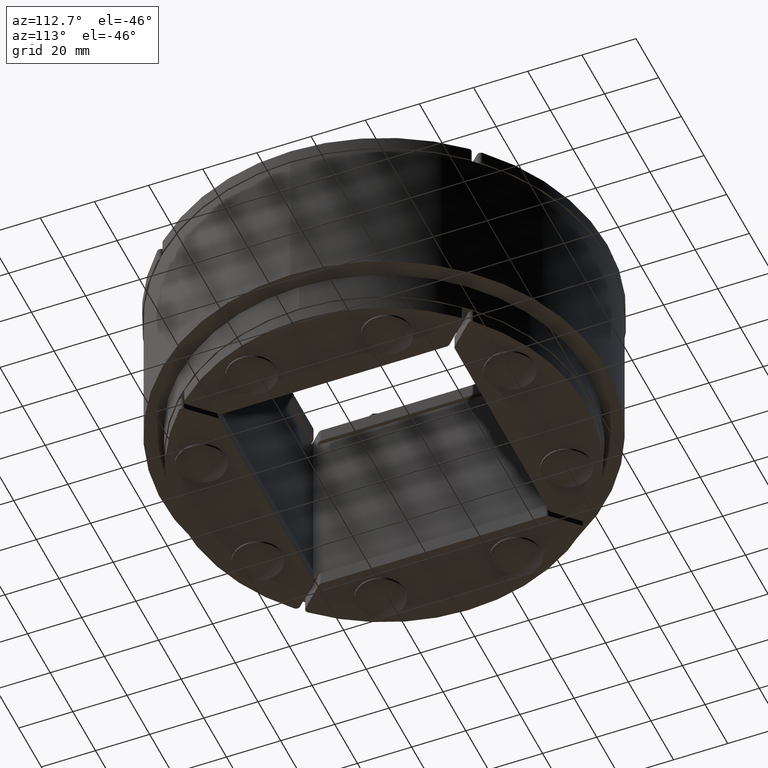
[diagram: clean part render]
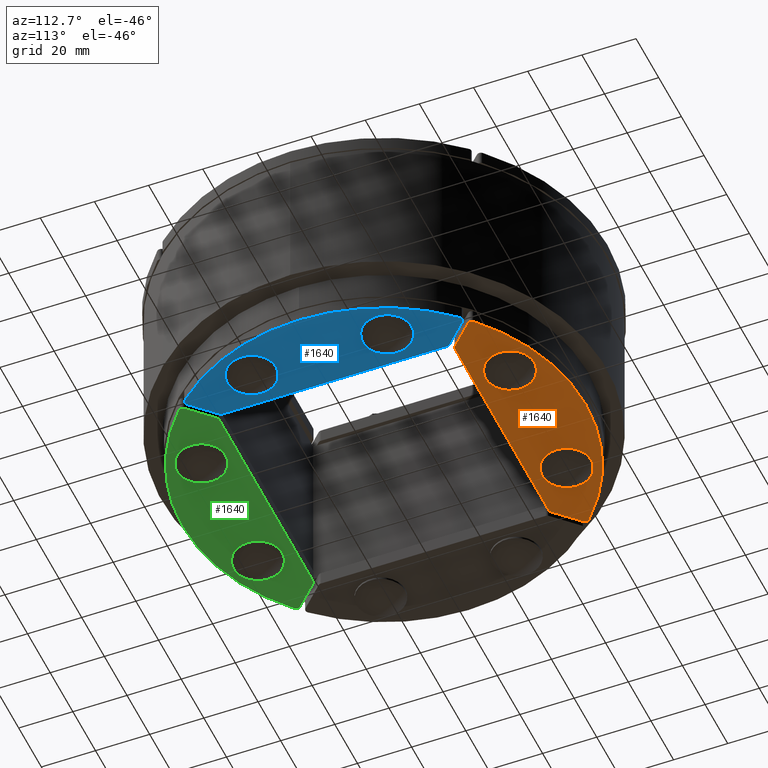
[diagram: same view with three faces highlighted in distinct colors, each labeled with its STEP entity id]
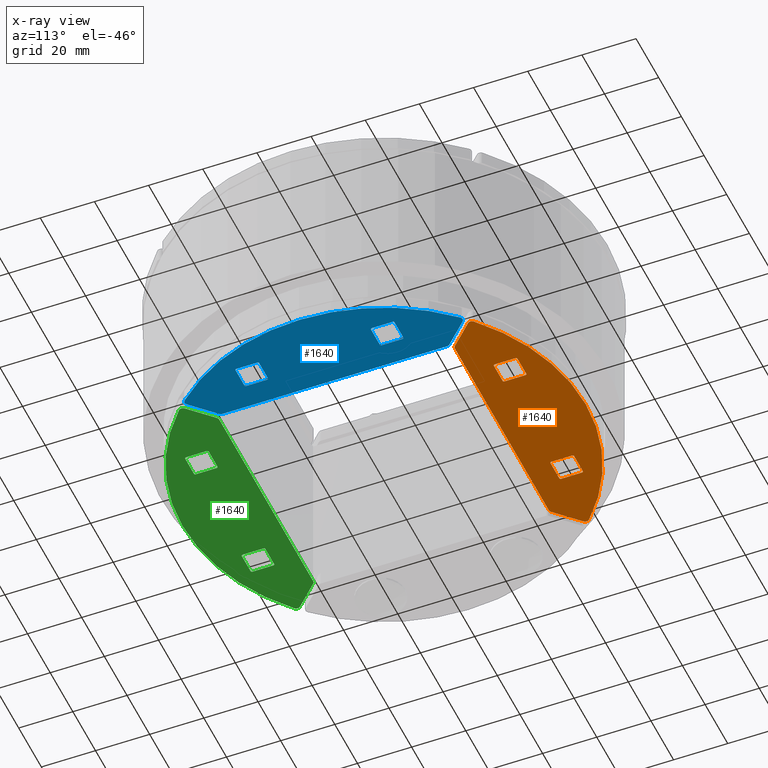
[diagram: x-ray of the same camera — body ghosted, the three highlighted faces saturated]
A machine part, auxiliary view with three faces highlighted in distinct colors.
The next image is the same camera in x-ray (body ghosted, the three faces saturated) — at least one of them is partly hidden behind the body in this view.
Their STEP definitions:

[orange] entity #1640 — the highlighted planar face has unit normal (0, 0, 1).
#1372=CARTESIAN_POINT('',(50.88140938278157,52.295622945154662,-5.0));
#1373=VERTEX_POINT('',#1372);
#1374=CARTESIAN_POINT('',(50.844463235885357,54.452645098789304,-5.0));
#1375=VERTEX_POINT('',#1374);
#1376=CARTESIAN_POINT('',(49.820749211001754,53.356283116934478,-5.0));
#1377=DIRECTION('',(0.0,0.0,1.0));
#1378=DIRECTION('',(0.999853342745097,0.017125799293949,0.0));
#1379=AXIS2_PLACEMENT_3D('',#1376,#1377,#1378);
#1380=CIRCLE('',#1379,1.5);
#1381=EDGE_CURVE('',#1373,#1375,#1380,.T.);
#1415=CARTESIAN_POINT('',(-50.844463235885364,54.452645098789304,-5.0));
#1416=VERTEX_POINT('',#1415);
#1417=CARTESIAN_POINT('',(0.0,0.0,-5.0));
#1418=DIRECTION('',(0.0,0.0,-1.0));
#1419=DIRECTION('',(-1.0,0.0,0.0));
#1420=AXIS2_PLACEMENT_3D('',#1417,#1418,#1419);
#1421=CIRCLE('',#1420,74.5);
#1422=EDGE_CURVE('',#1416,#1375,#1421,.T.);
#1442=CARTESIAN_POINT('',(-3.939464E-015,-1.589581E-015,-5.0));
#1443=DIRECTION('',(0.0,0.0,1.0));
#1444=DIRECTION('',(1.0,0.0,0.0));
#1445=AXIS2_PLACEMENT_3D('',#1442,#1443,#1444);
#1446=PLANE('',#1445);
#1447=ORIENTED_EDGE('',*,*,#1381,.F.);
#1448=CARTESIAN_POINT('',(42.525126265847099,43.939339828220191,-5.0));
#1449=VERTEX_POINT('',#1448);
#1450=CARTESIAN_POINT('',(50.881409382781584,52.295622945154676,-5.0));
#1451=DIRECTION('',(-0.707106781186548,-0.707106781186548,0.0));
#1452=VECTOR('',#1451,11.817568914998057);
#1453=LINE('',#1450,#1452);
#1454=EDGE_CURVE('',#1373,#1449,#1453,.T.);
#1455=ORIENTED_EDGE('',*,*,#1454,.T.);
#1456=CARTESIAN_POINT('',(41.464466094067291,43.500000000000007,-5.0));
#1457=VERTEX_POINT('',#1456);
#1458=CARTESIAN_POINT('',(41.464466094067291,45.000000000000007,-5.0));
#1459=DIRECTION('',(0.0,0.0,1.0));
#1460=DIRECTION('',(0.382683432365086,-0.923879532511288,0.0));
#1461=AXIS2_PLACEMENT_3D('',#1458,#1459,#1460);
#1462=CIRCLE('',#1461,1.5);
#1463=EDGE_CURVE('',#1457,#1449,#1462,.T.);
#1464=ORIENTED_EDGE('',*,*,#1463,.F.);
#1465=CARTESIAN_POINT('',(-41.464466094067269,43.500000000000007,-5.0));
#1466=VERTEX_POINT('',#1465);
#1467=CARTESIAN_POINT('',(41.464466094067291,43.500000000000007,-5.0));
#1468=DIRECTION('',(-1.0,0.0,0.0));
#1469=VECTOR('',#1468,82.928932188134553);
#1470=LINE('',#1467,#1469);
#1471=EDGE_CURVE('',#1457,#1466,#1470,.T.);
#1472=ORIENTED_EDGE('',*,*,#1471,.T.);
#1473=CARTESIAN_POINT('',(-42.525126265847092,43.939339828220184,-5.0));
#1474=VERTEX_POINT('',#1473);
#1475=CARTESIAN_POINT('',(-41.464466094067269,45.000000000000007,-5.0));
#1476=DIRECTION('',(0.0,0.0,1.0));
#1477=DIRECTION('',(-0.382683432365092,-0.923879532511286,0.0));
#1478=AXIS2_PLACEMENT_3D('',#1475,#1476,#1477);
#1479=CIRCLE('',#1478,1.5);
#1480=EDGE_CURVE('',#1474,#1466,#1479,.T.);
#1481=ORIENTED_EDGE('',*,*,#1480,.F.);
#1482=CARTESIAN_POINT('',(-50.88140938278157,52.295622945154662,-5.0));
#1483=VERTEX_POINT('',#1482);
#1484=CARTESIAN_POINT('',(-42.525126265847092,43.939339828220184,-5.0));
#1485=DIRECTION('',(-0.707106781186547,0.707106781186547,0.0));
#1486=VECTOR('',#1485,11.817568914998079);
#1487=LINE('',#1484,#1486);
#1488=EDGE_CURVE('',#1474,#1483,#1487,.T.);
#1489=ORIENTED_EDGE('',*,*,#1488,.T.);
#1490=CARTESIAN_POINT('',(-49.820749211001747,53.356283116934478,-5.0));
#1491=DIRECTION('',(0.0,0.0,1.0));
#1492=DIRECTION('',(-0.999853342745097,0.017125799293949,0.0));
#1493=AXIS2_PLACEMENT_3D('',#1490,#1491,#1492);
#1494=CIRCLE('',#1493,1.5);
#1495=EDGE_CURVE('',#1416,#1483,#1494,.T.);
#1496=ORIENTED_EDGE('',*,*,#1495,.F.);
#1497=ORIENTED_EDGE('',*,*,#1422,.T.);
#1498=EDGE_LOOP('',(#1447,#1455,#1464,#1472,#1481,#1489,#1496,#1497));
#1499=FACE_OUTER_BOUND('',#1498,.T.);
#1500=CARTESIAN_POINT('',(21.150000000000013,61.349999999999994,-5.0));
#1501=VERTEX_POINT('',#1500);
#1502=CARTESIAN_POINT('',(20.650000000000016,60.849999999999994,-5.0));
#1503=VERTEX_POINT('',#1502);
#1504=CARTESIAN_POINT('',(21.150000000000013,60.849999999999994,-5.0));
#1505=DIRECTION('',(0.0,0.0,1.0));
#1506=DIRECTION('',(-1.0,0.0,0.0));
#1507=AXIS2_PLACEMENT_3D('',#1504,#1505,#1506);
#1508=CIRCLE('',#1507,0.5);
#1509=EDGE_CURVE('',#1501,#1503,#1508,.T.);
#1510=ORIENTED_EDGE('',*,*,#1509,.T.);
#1511=CARTESIAN_POINT('',(20.650000000000016,53.149999999999984,-5.0));
#1512=VERTEX_POINT('',#1511);
#1513=CARTESIAN_POINT('',(20.650000000000016,60.849999999999994,-5.0));
#1514=DIRECTION('',(0.0,-1.0,0.0));
#1515=VECTOR('',#1514,7.700000000000003);
#1516=LINE('',#1513,#1515);
#1517=EDGE_CURVE('',#1503,#1512,#1516,.T.);
#1518=ORIENTED_EDGE('',*,*,#1517,.T.);
#1519=CARTESIAN_POINT('',(21.150000000000016,52.649999999999991,-5.0));
#1520=VERTEX_POINT('',#1519);
#1521=CARTESIAN_POINT('',(21.150000000000016,53.149999999999984,-5.0));
#1522=DIRECTION('',(0.0,0.0,1.0));
#1523=DIRECTION('',(0.0,-1.0,0.0));
#1524=AXIS2_PLACEMENT_3D('',#1521,#1522,#1523);
#1525=CIRCLE('',#1524,0.5);
#1526=EDGE_CURVE('',#1512,#1520,#1525,.T.);
#1527=ORIENTED_EDGE('',*,*,#1526,.T.);
#1528=CARTESIAN_POINT('',(28.850000000000019,52.649999999999991,-5.0));
#1529=VERTEX_POINT('',#1528);
#1530=CARTESIAN_POINT('',(21.150000000000016,52.649999999999991,-5.0));
#1531=DIRECTION('',(1.0,0.0,0.0));
#1532=VECTOR('',#1531,7.700000000000003);
#1533=LINE('',#1530,#1532);
#1534=EDGE_CURVE('',#1520,#1529,#1533,.T.);
#1535=ORIENTED_EDGE('',*,*,#1534,.T.);
#1536=CARTESIAN_POINT('',(29.350000000000023,53.149999999999984,-5.0));
#1537=VERTEX_POINT('',#1536);
#1538=CARTESIAN_POINT('',(28.850000000000019,53.149999999999984,-5.0));
#1539=DIRECTION('',(0.0,0.0,1.0));
#1540=DIRECTION('',(1.0,0.0,0.0));
#1541=AXIS2_PLACEMENT_3D('',#1538,#1539,#1540);
#1542=CIRCLE('',#1541,0.5);
#1543=EDGE_CURVE('',#1529,#1537,#1542,.T.);
#1544=ORIENTED_EDGE('',*,*,#1543,.T.);
#1545=CARTESIAN_POINT('',(29.350000000000023,60.849999999999994,-5.0));
#1546=VERTEX_POINT('',#1545);
#1547=CARTESIAN_POINT('',(29.350000000000023,53.149999999999984,-5.0));
#1548=DIRECTION('',(0.0,1.0,0.0));
#1549=VECTOR('',#1548,7.70000000000001);
#1550=LINE('',#1547,#1549);
#1551=EDGE_CURVE('',#1537,#1546,#1550,.T.);
#1552=ORIENTED_EDGE('',*,*,#1551,.T.);
#1553=CARTESIAN_POINT('',(28.850000000000016,61.349999999999994,-5.0));
#1554=VERTEX_POINT('',#1553);
#1555=CARTESIAN_POINT('',(28.850000000000016,60.849999999999994,-5.0));
#1556=DIRECTION('',(0.0,0.0,1.0));
#1557=DIRECTION('',(0.0,1.0,0.0));
#1558=AXIS2_PLACEMENT_3D('',#1555,#1556,#1557);
#1559=CIRCLE('',#1558,0.5);
#1560=EDGE_CURVE('',#1546,#1554,#1559,.T.);
#1561=ORIENTED_EDGE('',*,*,#1560,.T.);
#1562=CARTESIAN_POINT('',(28.850000000000016,61.349999999999994,-5.0));
#1563=DIRECTION('',(-1.0,0.0,0.0));
#1564=VECTOR('',#1563,7.700000000000003);
#1565=LINE('',#1562,#1564);
#1566=EDGE_CURVE('',#1554,#1501,#1565,.T.);
#1567=ORIENTED_EDGE('',*,*,#1566,.T.);
#1568=EDGE_LOOP('',(#1510,#1518,#1527,#1535,#1544,#1552,#1561,#1567));
#1569=FACE_BOUND('',#1568,.T.);
#1570=CARTESIAN_POINT('',(-29.350000000000023,53.149999999999984,-5.0));
#1571=VERTEX_POINT('',#1570);
#1572=CARTESIAN_POINT('',(-28.850000000000019,52.649999999999991,-5.0));
#1573=VERTEX_POINT('',#1572);
#1574=CARTESIAN_POINT('',(-28.850000000000019,53.149999999999984,-5.0));
#1575=DIRECTION('',(0.0,0.0,1.0));
#1576=DIRECTION('',(-1.0,0.0,0.0));
#1577=AXIS2_PLACEMENT_3D('',#1574,#1575,#1576);
#1578=CIRCLE('',#1577,0.5);
#1579=EDGE_CURVE('',#1571,#1573,#1578,.T.);
#1580=ORIENTED_EDGE('',*,*,#1579,.T.);
#1581=CARTESIAN_POINT('',(-21.150000000000016,52.649999999999991,-5.0));
#1582=VERTEX_POINT('',#1581);
#1583=CARTESIAN_POINT('',(-28.850000000000019,52.649999999999991,-5.0));
#1584=DIRECTION('',(1.0,0.0,0.0));
#1585=VECTOR('',#1584,7.700000000000003);
#1586=LINE('',#1583,#1585);
#1587=EDGE_CURVE('',#1573,#1582,#1586,.T.);
#1588=ORIENTED_EDGE('',*,*,#1587,.T.);
#1589=CARTESIAN_POINT('',(-20.650000000000016,53.149999999999984,-5.0));
#1590=VERTEX_POINT('',#1589);
#1591=CARTESIAN_POINT('',(-21.150000000000016,53.149999999999984,-5.0));
#1592=DIRECTION('',(0.0,0.0,1.0));
#1593=DIRECTION('',(0.0,-1.0,0.0));
#1594=AXIS2_PLACEMENT_3D('',#1591,#1592,#1593);
#1595=CIRCLE('',#1594,0.5);
#1596=EDGE_CURVE('',#1582,#1590,#1595,.T.);
#1597=ORIENTED_EDGE('',*,*,#1596,.T.);
#1598=CARTESIAN_POINT('',(-20.650000000000016,60.849999999999994,-5.0));
#1599=VERTEX_POINT('',#1598);
#1600=CARTESIAN_POINT('',(-20.650000000000016,53.149999999999991,-5.0));
#1601=DIRECTION('',(0.0,1.0,0.0));
#1602=VECTOR('',#1601,7.700000000000003);
#1603=LINE('',#1600,#1602);
#1604=EDGE_CURVE('',#1590,#1599,#1603,.T.);
#1605=ORIENTED_EDGE('',*,*,#1604,.T.);
#1606=CARTESIAN_POINT('',(-21.150000000000013,61.349999999999994,-5.0));
#1607=VERTEX_POINT('',#1606);
#1608=CARTESIAN_POINT('',(-21.150000000000013,60.849999999999994,-5.0));
#1609=DIRECTION('',(0.0,0.0,1.0));
#1610=DIRECTION('',(1.0,0.0,0.0));
#1611=AXIS2_PLACEMENT_3D('',#1608,#1609,#1610);
#1612=CIRCLE('',#1611,0.5);
#1613=EDGE_CURVE('',#1599,#1607,#1612,.T.);
#1614=ORIENTED_EDGE('',*,*,#1613,.T.);
#1615=CARTESIAN_POINT('',(-28.850000000000016,61.349999999999994,-5.0));
#1616=VERTEX_POINT('',#1615);
#1617=CARTESIAN_POINT('',(-21.150000000000013,61.349999999999994,-5.0));
#1618=DIRECTION('',(-1.0,0.0,0.0));
#1619=VECTOR('',#1618,7.700000000000003);
#1620=LINE('',#1617,#1619);
#1621=EDGE_CURVE('',#1607,#1616,#1620,.T.);
#1622=ORIENTED_EDGE('',*,*,#1621,.T.);
#1623=CARTESIAN_POINT('',(-29.350000000000023,60.849999999999994,-5.0));
#1624=VERTEX_POINT('',#1623);
#1625=CARTESIAN_POINT('',(-28.850000000000016,60.849999999999994,-5.0));
#1626=DIRECTION('',(0.0,0.0,1.0));
#1627=DIRECTION('',(0.0,1.0,0.0));
#1628=AXIS2_PLACEMENT_3D('',#1625,#1626,#1627);
#1629=CIRCLE('',#1628,0.5);
#1630=EDGE_CURVE('',#1616,#1624,#1629,.T.);
#1631=ORIENTED_EDGE('',*,*,#1630,.T.);
#1632=CARTESIAN_POINT('',(-29.350000000000023,60.849999999999994,-5.0));
#1633=DIRECTION('',(0.0,-1.0,0.0));
#1634=VECTOR('',#1633,7.70000000000001);
#1635=LINE('',#1632,#1634);
#1636=EDGE_CURVE('',#1624,#1571,#1635,.T.);
#1637=ORIENTED_EDGE('',*,*,#1636,.T.);
#1638=EDGE_LOOP('',(#1580,#1588,#1597,#1605,#1614,#1622,#1631,#1637));
#1639=FACE_BOUND('',#1638,.T.);
#1640=ADVANCED_FACE('',(#1499,#1569,#1639),#1446,.F.);

[blue] entity #1640 — the highlighted planar face has unit normal (0, 0, 1).
#1372=CARTESIAN_POINT('',(50.88140938278157,52.295622945154662,-5.0));
#1373=VERTEX_POINT('',#1372);
#1374=CARTESIAN_POINT('',(50.844463235885357,54.452645098789304,-5.0));
#1375=VERTEX_POINT('',#1374);
#1376=CARTESIAN_POINT('',(49.820749211001754,53.356283116934478,-5.0));
#1377=DIRECTION('',(0.0,0.0,1.0));
#1378=DIRECTION('',(0.999853342745097,0.017125799293949,0.0));
#1379=AXIS2_PLACEMENT_3D('',#1376,#1377,#1378);
#1380=CIRCLE('',#1379,1.5);
#1381=EDGE_CURVE('',#1373,#1375,#1380,.T.);
#1415=CARTESIAN_POINT('',(-50.844463235885364,54.452645098789304,-5.0));
#1416=VERTEX_POINT('',#1415);
#1417=CARTESIAN_POINT('',(0.0,0.0,-5.0));
#1418=DIRECTION('',(0.0,0.0,-1.0));
#1419=DIRECTION('',(-1.0,0.0,0.0));
#1420=AXIS2_PLACEMENT_3D('',#1417,#1418,#1419);
#1421=CIRCLE('',#1420,74.5);
#1422=EDGE_CURVE('',#1416,#1375,#1421,.T.);
#1442=CARTESIAN_POINT('',(-3.939464E-015,-1.589581E-015,-5.0));
#1443=DIRECTION('',(0.0,0.0,1.0));
#1444=DIRECTION('',(1.0,0.0,0.0));
#1445=AXIS2_PLACEMENT_3D('',#1442,#1443,#1444);
#1446=PLANE('',#1445);
#1447=ORIENTED_EDGE('',*,*,#1381,.F.);
#1448=CARTESIAN_POINT('',(42.525126265847099,43.939339828220191,-5.0));
#1449=VERTEX_POINT('',#1448);
#1450=CARTESIAN_POINT('',(50.881409382781584,52.295622945154676,-5.0));
#1451=DIRECTION('',(-0.707106781186548,-0.707106781186548,0.0));
#1452=VECTOR('',#1451,11.817568914998057);
#1453=LINE('',#1450,#1452);
#1454=EDGE_CURVE('',#1373,#1449,#1453,.T.);
#1455=ORIENTED_EDGE('',*,*,#1454,.T.);
#1456=CARTESIAN_POINT('',(41.464466094067291,43.500000000000007,-5.0));
#1457=VERTEX_POINT('',#1456);
#1458=CARTESIAN_POINT('',(41.464466094067291,45.000000000000007,-5.0));
#1459=DIRECTION('',(0.0,0.0,1.0));
#1460=DIRECTION('',(0.382683432365086,-0.923879532511288,0.0));
#1461=AXIS2_PLACEMENT_3D('',#1458,#1459,#1460);
#1462=CIRCLE('',#1461,1.5);
#1463=EDGE_CURVE('',#1457,#1449,#1462,.T.);
#1464=ORIENTED_EDGE('',*,*,#1463,.F.);
#1465=CARTESIAN_POINT('',(-41.464466094067269,43.500000000000007,-5.0));
#1466=VERTEX_POINT('',#1465);
#1467=CARTESIAN_POINT('',(41.464466094067291,43.500000000000007,-5.0));
#1468=DIRECTION('',(-1.0,0.0,0.0));
#1469=VECTOR('',#1468,82.928932188134553);
#1470=LINE('',#1467,#1469);
#1471=EDGE_CURVE('',#1457,#1466,#1470,.T.);
#1472=ORIENTED_EDGE('',*,*,#1471,.T.);
#1473=CARTESIAN_POINT('',(-42.525126265847092,43.939339828220184,-5.0));
#1474=VERTEX_POINT('',#1473);
#1475=CARTESIAN_POINT('',(-41.464466094067269,45.000000000000007,-5.0));
#1476=DIRECTION('',(0.0,0.0,1.0));
#1477=DIRECTION('',(-0.382683432365092,-0.923879532511286,0.0));
#1478=AXIS2_PLACEMENT_3D('',#1475,#1476,#1477);
#1479=CIRCLE('',#1478,1.5);
#1480=EDGE_CURVE('',#1474,#1466,#1479,.T.);
#1481=ORIENTED_EDGE('',*,*,#1480,.F.);
#1482=CARTESIAN_POINT('',(-50.88140938278157,52.295622945154662,-5.0));
#1483=VERTEX_POINT('',#1482);
#1484=CARTESIAN_POINT('',(-42.525126265847092,43.939339828220184,-5.0));
#1485=DIRECTION('',(-0.707106781186547,0.707106781186547,0.0));
#1486=VECTOR('',#1485,11.817568914998079);
#1487=LINE('',#1484,#1486);
#1488=EDGE_CURVE('',#1474,#1483,#1487,.T.);
#1489=ORIENTED_EDGE('',*,*,#1488,.T.);
#1490=CARTESIAN_POINT('',(-49.820749211001747,53.356283116934478,-5.0));
#1491=DIRECTION('',(0.0,0.0,1.0));
#1492=DIRECTION('',(-0.999853342745097,0.017125799293949,0.0));
#1493=AXIS2_PLACEMENT_3D('',#1490,#1491,#1492);
#1494=CIRCLE('',#1493,1.5);
#1495=EDGE_CURVE('',#1416,#1483,#1494,.T.);
#1496=ORIENTED_EDGE('',*,*,#1495,.F.);
#1497=ORIENTED_EDGE('',*,*,#1422,.T.);
#1498=EDGE_LOOP('',(#1447,#1455,#1464,#1472,#1481,#1489,#1496,#1497));
#1499=FACE_OUTER_BOUND('',#1498,.T.);
#1500=CARTESIAN_POINT('',(21.150000000000013,61.349999999999994,-5.0));
#1501=VERTEX_POINT('',#1500);
#1502=CARTESIAN_POINT('',(20.650000000000016,60.849999999999994,-5.0));
#1503=VERTEX_POINT('',#1502);
#1504=CARTESIAN_POINT('',(21.150000000000013,60.849999999999994,-5.0));
#1505=DIRECTION('',(0.0,0.0,1.0));
#1506=DIRECTION('',(-1.0,0.0,0.0));
#1507=AXIS2_PLACEMENT_3D('',#1504,#1505,#1506);
#1508=CIRCLE('',#1507,0.5);
#1509=EDGE_CURVE('',#1501,#1503,#1508,.T.);
#1510=ORIENTED_EDGE('',*,*,#1509,.T.);
#1511=CARTESIAN_POINT('',(20.650000000000016,53.149999999999984,-5.0));
#1512=VERTEX_POINT('',#1511);
#1513=CARTESIAN_POINT('',(20.650000000000016,60.849999999999994,-5.0));
#1514=DIRECTION('',(0.0,-1.0,0.0));
#1515=VECTOR('',#1514,7.700000000000003);
#1516=LINE('',#1513,#1515);
#1517=EDGE_CURVE('',#1503,#1512,#1516,.T.);
#1518=ORIENTED_EDGE('',*,*,#1517,.T.);
#1519=CARTESIAN_POINT('',(21.150000000000016,52.649999999999991,-5.0));
#1520=VERTEX_POINT('',#1519);
#1521=CARTESIAN_POINT('',(21.150000000000016,53.149999999999984,-5.0));
#1522=DIRECTION('',(0.0,0.0,1.0));
#1523=DIRECTION('',(0.0,-1.0,0.0));
#1524=AXIS2_PLACEMENT_3D('',#1521,#1522,#1523);
#1525=CIRCLE('',#1524,0.5);
#1526=EDGE_CURVE('',#1512,#1520,#1525,.T.);
#1527=ORIENTED_EDGE('',*,*,#1526,.T.);
#1528=CARTESIAN_POINT('',(28.850000000000019,52.649999999999991,-5.0));
#1529=VERTEX_POINT('',#1528);
#1530=CARTESIAN_POINT('',(21.150000000000016,52.649999999999991,-5.0));
#1531=DIRECTION('',(1.0,0.0,0.0));
#1532=VECTOR('',#1531,7.700000000000003);
#1533=LINE('',#1530,#1532);
#1534=EDGE_CURVE('',#1520,#1529,#1533,.T.);
#1535=ORIENTED_EDGE('',*,*,#1534,.T.);
#1536=CARTESIAN_POINT('',(29.350000000000023,53.149999999999984,-5.0));
#1537=VERTEX_POINT('',#1536);
#1538=CARTESIAN_POINT('',(28.850000000000019,53.149999999999984,-5.0));
#1539=DIRECTION('',(0.0,0.0,1.0));
#1540=DIRECTION('',(1.0,0.0,0.0));
#1541=AXIS2_PLACEMENT_3D('',#1538,#1539,#1540);
#1542=CIRCLE('',#1541,0.5);
#1543=EDGE_CURVE('',#1529,#1537,#1542,.T.);
#1544=ORIENTED_EDGE('',*,*,#1543,.T.);
#1545=CARTESIAN_POINT('',(29.350000000000023,60.849999999999994,-5.0));
#1546=VERTEX_POINT('',#1545);
#1547=CARTESIAN_POINT('',(29.350000000000023,53.149999999999984,-5.0));
#1548=DIRECTION('',(0.0,1.0,0.0));
#1549=VECTOR('',#1548,7.70000000000001);
#1550=LINE('',#1547,#1549);
#1551=EDGE_CURVE('',#1537,#1546,#1550,.T.);
#1552=ORIENTED_EDGE('',*,*,#1551,.T.);
#1553=CARTESIAN_POINT('',(28.850000000000016,61.349999999999994,-5.0));
#1554=VERTEX_POINT('',#1553);
#1555=CARTESIAN_POINT('',(28.850000000000016,60.849999999999994,-5.0));
#1556=DIRECTION('',(0.0,0.0,1.0));
#1557=DIRECTION('',(0.0,1.0,0.0));
#1558=AXIS2_PLACEMENT_3D('',#1555,#1556,#1557);
#1559=CIRCLE('',#1558,0.5);
#1560=EDGE_CURVE('',#1546,#1554,#1559,.T.);
#1561=ORIENTED_EDGE('',*,*,#1560,.T.);
#1562=CARTESIAN_POINT('',(28.850000000000016,61.349999999999994,-5.0));
#1563=DIRECTION('',(-1.0,0.0,0.0));
#1564=VECTOR('',#1563,7.700000000000003);
#1565=LINE('',#1562,#1564);
#1566=EDGE_CURVE('',#1554,#1501,#1565,.T.);
#1567=ORIENTED_EDGE('',*,*,#1566,.T.);
#1568=EDGE_LOOP('',(#1510,#1518,#1527,#1535,#1544,#1552,#1561,#1567));
#1569=FACE_BOUND('',#1568,.T.);
#1570=CARTESIAN_POINT('',(-29.350000000000023,53.149999999999984,-5.0));
#1571=VERTEX_POINT('',#1570);
#1572=CARTESIAN_POINT('',(-28.850000000000019,52.649999999999991,-5.0));
#1573=VERTEX_POINT('',#1572);
#1574=CARTESIAN_POINT('',(-28.850000000000019,53.149999999999984,-5.0));
#1575=DIRECTION('',(0.0,0.0,1.0));
#1576=DIRECTION('',(-1.0,0.0,0.0));
#1577=AXIS2_PLACEMENT_3D('',#1574,#1575,#1576);
#1578=CIRCLE('',#1577,0.5);
#1579=EDGE_CURVE('',#1571,#1573,#1578,.T.);
#1580=ORIENTED_EDGE('',*,*,#1579,.T.);
#1581=CARTESIAN_POINT('',(-21.150000000000016,52.649999999999991,-5.0));
#1582=VERTEX_POINT('',#1581);
#1583=CARTESIAN_POINT('',(-28.850000000000019,52.649999999999991,-5.0));
#1584=DIRECTION('',(1.0,0.0,0.0));
#1585=VECTOR('',#1584,7.700000000000003);
#1586=LINE('',#1583,#1585);
#1587=EDGE_CURVE('',#1573,#1582,#1586,.T.);
#1588=ORIENTED_EDGE('',*,*,#1587,.T.);
#1589=CARTESIAN_POINT('',(-20.650000000000016,53.149999999999984,-5.0));
#1590=VERTEX_POINT('',#1589);
#1591=CARTESIAN_POINT('',(-21.150000000000016,53.149999999999984,-5.0));
#1592=DIRECTION('',(0.0,0.0,1.0));
#1593=DIRECTION('',(0.0,-1.0,0.0));
#1594=AXIS2_PLACEMENT_3D('',#1591,#1592,#1593);
#1595=CIRCLE('',#1594,0.5);
#1596=EDGE_CURVE('',#1582,#1590,#1595,.T.);
#1597=ORIENTED_EDGE('',*,*,#1596,.T.);
#1598=CARTESIAN_POINT('',(-20.650000000000016,60.849999999999994,-5.0));
#1599=VERTEX_POINT('',#1598);
#1600=CARTESIAN_POINT('',(-20.650000000000016,53.149999999999991,-5.0));
#1601=DIRECTION('',(0.0,1.0,0.0));
#1602=VECTOR('',#1601,7.700000000000003);
#1603=LINE('',#1600,#1602);
#1604=EDGE_CURVE('',#1590,#1599,#1603,.T.);
#1605=ORIENTED_EDGE('',*,*,#1604,.T.);
#1606=CARTESIAN_POINT('',(-21.150000000000013,61.349999999999994,-5.0));
#1607=VERTEX_POINT('',#1606);
#1608=CARTESIAN_POINT('',(-21.150000000000013,60.849999999999994,-5.0));
#1609=DIRECTION('',(0.0,0.0,1.0));
#1610=DIRECTION('',(1.0,0.0,0.0));
#1611=AXIS2_PLACEMENT_3D('',#1608,#1609,#1610);
#1612=CIRCLE('',#1611,0.5);
#1613=EDGE_CURVE('',#1599,#1607,#1612,.T.);
#1614=ORIENTED_EDGE('',*,*,#1613,.T.);
#1615=CARTESIAN_POINT('',(-28.850000000000016,61.349999999999994,-5.0));
#1616=VERTEX_POINT('',#1615);
#1617=CARTESIAN_POINT('',(-21.150000000000013,61.349999999999994,-5.0));
#1618=DIRECTION('',(-1.0,0.0,0.0));
#1619=VECTOR('',#1618,7.700000000000003);
#1620=LINE('',#1617,#1619);
#1621=EDGE_CURVE('',#1607,#1616,#1620,.T.);
#1622=ORIENTED_EDGE('',*,*,#1621,.T.);
#1623=CARTESIAN_POINT('',(-29.350000000000023,60.849999999999994,-5.0));
#1624=VERTEX_POINT('',#1623);
#1625=CARTESIAN_POINT('',(-28.850000000000016,60.849999999999994,-5.0));
#1626=DIRECTION('',(0.0,0.0,1.0));
#1627=DIRECTION('',(0.0,1.0,0.0));
#1628=AXIS2_PLACEMENT_3D('',#1625,#1626,#1627);
#1629=CIRCLE('',#1628,0.5);
#1630=EDGE_CURVE('',#1616,#1624,#1629,.T.);
#1631=ORIENTED_EDGE('',*,*,#1630,.T.);
#1632=CARTESIAN_POINT('',(-29.350000000000023,60.849999999999994,-5.0));
#1633=DIRECTION('',(0.0,-1.0,0.0));
#1634=VECTOR('',#1633,7.70000000000001);
#1635=LINE('',#1632,#1634);
#1636=EDGE_CURVE('',#1624,#1571,#1635,.T.);
#1637=ORIENTED_EDGE('',*,*,#1636,.T.);
#1638=EDGE_LOOP('',(#1580,#1588,#1597,#1605,#1614,#1622,#1631,#1637));
#1639=FACE_BOUND('',#1638,.T.);
#1640=ADVANCED_FACE('',(#1499,#1569,#1639),#1446,.F.);

[green] entity #1640 — the highlighted planar face has unit normal (0, 0, 1).
#1372=CARTESIAN_POINT('',(50.88140938278157,52.295622945154662,-5.0));
#1373=VERTEX_POINT('',#1372);
#1374=CARTESIAN_POINT('',(50.844463235885357,54.452645098789304,-5.0));
#1375=VERTEX_POINT('',#1374);
#1376=CARTESIAN_POINT('',(49.820749211001754,53.356283116934478,-5.0));
#1377=DIRECTION('',(0.0,0.0,1.0));
#1378=DIRECTION('',(0.999853342745097,0.017125799293949,0.0));
#1379=AXIS2_PLACEMENT_3D('',#1376,#1377,#1378);
#1380=CIRCLE('',#1379,1.5);
#1381=EDGE_CURVE('',#1373,#1375,#1380,.T.);
#1415=CARTESIAN_POINT('',(-50.844463235885364,54.452645098789304,-5.0));
#1416=VERTEX_POINT('',#1415);
#1417=CARTESIAN_POINT('',(0.0,0.0,-5.0));
#1418=DIRECTION('',(0.0,0.0,-1.0));
#1419=DIRECTION('',(-1.0,0.0,0.0));
#1420=AXIS2_PLACEMENT_3D('',#1417,#1418,#1419);
#1421=CIRCLE('',#1420,74.5);
#1422=EDGE_CURVE('',#1416,#1375,#1421,.T.);
#1442=CARTESIAN_POINT('',(-3.939464E-015,-1.589581E-015,-5.0));
#1443=DIRECTION('',(0.0,0.0,1.0));
#1444=DIRECTION('',(1.0,0.0,0.0));
#1445=AXIS2_PLACEMENT_3D('',#1442,#1443,#1444);
#1446=PLANE('',#1445);
#1447=ORIENTED_EDGE('',*,*,#1381,.F.);
#1448=CARTESIAN_POINT('',(42.525126265847099,43.939339828220191,-5.0));
#1449=VERTEX_POINT('',#1448);
#1450=CARTESIAN_POINT('',(50.881409382781584,52.295622945154676,-5.0));
#1451=DIRECTION('',(-0.707106781186548,-0.707106781186548,0.0));
#1452=VECTOR('',#1451,11.817568914998057);
#1453=LINE('',#1450,#1452);
#1454=EDGE_CURVE('',#1373,#1449,#1453,.T.);
#1455=ORIENTED_EDGE('',*,*,#1454,.T.);
#1456=CARTESIAN_POINT('',(41.464466094067291,43.500000000000007,-5.0));
#1457=VERTEX_POINT('',#1456);
#1458=CARTESIAN_POINT('',(41.464466094067291,45.000000000000007,-5.0));
#1459=DIRECTION('',(0.0,0.0,1.0));
#1460=DIRECTION('',(0.382683432365086,-0.923879532511288,0.0));
#1461=AXIS2_PLACEMENT_3D('',#1458,#1459,#1460);
#1462=CIRCLE('',#1461,1.5);
#1463=EDGE_CURVE('',#1457,#1449,#1462,.T.);
#1464=ORIENTED_EDGE('',*,*,#1463,.F.);
#1465=CARTESIAN_POINT('',(-41.464466094067269,43.500000000000007,-5.0));
#1466=VERTEX_POINT('',#1465);
#1467=CARTESIAN_POINT('',(41.464466094067291,43.500000000000007,-5.0));
#1468=DIRECTION('',(-1.0,0.0,0.0));
#1469=VECTOR('',#1468,82.928932188134553);
#1470=LINE('',#1467,#1469);
#1471=EDGE_CURVE('',#1457,#1466,#1470,.T.);
#1472=ORIENTED_EDGE('',*,*,#1471,.T.);
#1473=CARTESIAN_POINT('',(-42.525126265847092,43.939339828220184,-5.0));
#1474=VERTEX_POINT('',#1473);
#1475=CARTESIAN_POINT('',(-41.464466094067269,45.000000000000007,-5.0));
#1476=DIRECTION('',(0.0,0.0,1.0));
#1477=DIRECTION('',(-0.382683432365092,-0.923879532511286,0.0));
#1478=AXIS2_PLACEMENT_3D('',#1475,#1476,#1477);
#1479=CIRCLE('',#1478,1.5);
#1480=EDGE_CURVE('',#1474,#1466,#1479,.T.);
#1481=ORIENTED_EDGE('',*,*,#1480,.F.);
#1482=CARTESIAN_POINT('',(-50.88140938278157,52.295622945154662,-5.0));
#1483=VERTEX_POINT('',#1482);
#1484=CARTESIAN_POINT('',(-42.525126265847092,43.939339828220184,-5.0));
#1485=DIRECTION('',(-0.707106781186547,0.707106781186547,0.0));
#1486=VECTOR('',#1485,11.817568914998079);
#1487=LINE('',#1484,#1486);
#1488=EDGE_CURVE('',#1474,#1483,#1487,.T.);
#1489=ORIENTED_EDGE('',*,*,#1488,.T.);
#1490=CARTESIAN_POINT('',(-49.820749211001747,53.356283116934478,-5.0));
#1491=DIRECTION('',(0.0,0.0,1.0));
#1492=DIRECTION('',(-0.999853342745097,0.017125799293949,0.0));
#1493=AXIS2_PLACEMENT_3D('',#1490,#1491,#1492);
#1494=CIRCLE('',#1493,1.5);
#1495=EDGE_CURVE('',#1416,#1483,#1494,.T.);
#1496=ORIENTED_EDGE('',*,*,#1495,.F.);
#1497=ORIENTED_EDGE('',*,*,#1422,.T.);
#1498=EDGE_LOOP('',(#1447,#1455,#1464,#1472,#1481,#1489,#1496,#1497));
#1499=FACE_OUTER_BOUND('',#1498,.T.);
#1500=CARTESIAN_POINT('',(21.150000000000013,61.349999999999994,-5.0));
#1501=VERTEX_POINT('',#1500);
#1502=CARTESIAN_POINT('',(20.650000000000016,60.849999999999994,-5.0));
#1503=VERTEX_POINT('',#1502);
#1504=CARTESIAN_POINT('',(21.150000000000013,60.849999999999994,-5.0));
#1505=DIRECTION('',(0.0,0.0,1.0));
#1506=DIRECTION('',(-1.0,0.0,0.0));
#1507=AXIS2_PLACEMENT_3D('',#1504,#1505,#1506);
#1508=CIRCLE('',#1507,0.5);
#1509=EDGE_CURVE('',#1501,#1503,#1508,.T.);
#1510=ORIENTED_EDGE('',*,*,#1509,.T.);
#1511=CARTESIAN_POINT('',(20.650000000000016,53.149999999999984,-5.0));
#1512=VERTEX_POINT('',#1511);
#1513=CARTESIAN_POINT('',(20.650000000000016,60.849999999999994,-5.0));
#1514=DIRECTION('',(0.0,-1.0,0.0));
#1515=VECTOR('',#1514,7.700000000000003);
#1516=LINE('',#1513,#1515);
#1517=EDGE_CURVE('',#1503,#1512,#1516,.T.);
#1518=ORIENTED_EDGE('',*,*,#1517,.T.);
#1519=CARTESIAN_POINT('',(21.150000000000016,52.649999999999991,-5.0));
#1520=VERTEX_POINT('',#1519);
#1521=CARTESIAN_POINT('',(21.150000000000016,53.149999999999984,-5.0));
#1522=DIRECTION('',(0.0,0.0,1.0));
#1523=DIRECTION('',(0.0,-1.0,0.0));
#1524=AXIS2_PLACEMENT_3D('',#1521,#1522,#1523);
#1525=CIRCLE('',#1524,0.5);
#1526=EDGE_CURVE('',#1512,#1520,#1525,.T.);
#1527=ORIENTED_EDGE('',*,*,#1526,.T.);
#1528=CARTESIAN_POINT('',(28.850000000000019,52.649999999999991,-5.0));
#1529=VERTEX_POINT('',#1528);
#1530=CARTESIAN_POINT('',(21.150000000000016,52.649999999999991,-5.0));
#1531=DIRECTION('',(1.0,0.0,0.0));
#1532=VECTOR('',#1531,7.700000000000003);
#1533=LINE('',#1530,#1532);
#1534=EDGE_CURVE('',#1520,#1529,#1533,.T.);
#1535=ORIENTED_EDGE('',*,*,#1534,.T.);
#1536=CARTESIAN_POINT('',(29.350000000000023,53.149999999999984,-5.0));
#1537=VERTEX_POINT('',#1536);
#1538=CARTESIAN_POINT('',(28.850000000000019,53.149999999999984,-5.0));
#1539=DIRECTION('',(0.0,0.0,1.0));
#1540=DIRECTION('',(1.0,0.0,0.0));
#1541=AXIS2_PLACEMENT_3D('',#1538,#1539,#1540);
#1542=CIRCLE('',#1541,0.5);
#1543=EDGE_CURVE('',#1529,#1537,#1542,.T.);
#1544=ORIENTED_EDGE('',*,*,#1543,.T.);
#1545=CARTESIAN_POINT('',(29.350000000000023,60.849999999999994,-5.0));
#1546=VERTEX_POINT('',#1545);
#1547=CARTESIAN_POINT('',(29.350000000000023,53.149999999999984,-5.0));
#1548=DIRECTION('',(0.0,1.0,0.0));
#1549=VECTOR('',#1548,7.70000000000001);
#1550=LINE('',#1547,#1549);
#1551=EDGE_CURVE('',#1537,#1546,#1550,.T.);
#1552=ORIENTED_EDGE('',*,*,#1551,.T.);
#1553=CARTESIAN_POINT('',(28.850000000000016,61.349999999999994,-5.0));
#1554=VERTEX_POINT('',#1553);
#1555=CARTESIAN_POINT('',(28.850000000000016,60.849999999999994,-5.0));
#1556=DIRECTION('',(0.0,0.0,1.0));
#1557=DIRECTION('',(0.0,1.0,0.0));
#1558=AXIS2_PLACEMENT_3D('',#1555,#1556,#1557);
#1559=CIRCLE('',#1558,0.5);
#1560=EDGE_CURVE('',#1546,#1554,#1559,.T.);
#1561=ORIENTED_EDGE('',*,*,#1560,.T.);
#1562=CARTESIAN_POINT('',(28.850000000000016,61.349999999999994,-5.0));
#1563=DIRECTION('',(-1.0,0.0,0.0));
#1564=VECTOR('',#1563,7.700000000000003);
#1565=LINE('',#1562,#1564);
#1566=EDGE_CURVE('',#1554,#1501,#1565,.T.);
#1567=ORIENTED_EDGE('',*,*,#1566,.T.);
#1568=EDGE_LOOP('',(#1510,#1518,#1527,#1535,#1544,#1552,#1561,#1567));
#1569=FACE_BOUND('',#1568,.T.);
#1570=CARTESIAN_POINT('',(-29.350000000000023,53.149999999999984,-5.0));
#1571=VERTEX_POINT('',#1570);
#1572=CARTESIAN_POINT('',(-28.850000000000019,52.649999999999991,-5.0));
#1573=VERTEX_POINT('',#1572);
#1574=CARTESIAN_POINT('',(-28.850000000000019,53.149999999999984,-5.0));
#1575=DIRECTION('',(0.0,0.0,1.0));
#1576=DIRECTION('',(-1.0,0.0,0.0));
#1577=AXIS2_PLACEMENT_3D('',#1574,#1575,#1576);
#1578=CIRCLE('',#1577,0.5);
#1579=EDGE_CURVE('',#1571,#1573,#1578,.T.);
#1580=ORIENTED_EDGE('',*,*,#1579,.T.);
#1581=CARTESIAN_POINT('',(-21.150000000000016,52.649999999999991,-5.0));
#1582=VERTEX_POINT('',#1581);
#1583=CARTESIAN_POINT('',(-28.850000000000019,52.649999999999991,-5.0));
#1584=DIRECTION('',(1.0,0.0,0.0));
#1585=VECTOR('',#1584,7.700000000000003);
#1586=LINE('',#1583,#1585);
#1587=EDGE_CURVE('',#1573,#1582,#1586,.T.);
#1588=ORIENTED_EDGE('',*,*,#1587,.T.);
#1589=CARTESIAN_POINT('',(-20.650000000000016,53.149999999999984,-5.0));
#1590=VERTEX_POINT('',#1589);
#1591=CARTESIAN_POINT('',(-21.150000000000016,53.149999999999984,-5.0));
#1592=DIRECTION('',(0.0,0.0,1.0));
#1593=DIRECTION('',(0.0,-1.0,0.0));
#1594=AXIS2_PLACEMENT_3D('',#1591,#1592,#1593);
#1595=CIRCLE('',#1594,0.5);
#1596=EDGE_CURVE('',#1582,#1590,#1595,.T.);
#1597=ORIENTED_EDGE('',*,*,#1596,.T.);
#1598=CARTESIAN_POINT('',(-20.650000000000016,60.849999999999994,-5.0));
#1599=VERTEX_POINT('',#1598);
#1600=CARTESIAN_POINT('',(-20.650000000000016,53.149999999999991,-5.0));
#1601=DIRECTION('',(0.0,1.0,0.0));
#1602=VECTOR('',#1601,7.700000000000003);
#1603=LINE('',#1600,#1602);
#1604=EDGE_CURVE('',#1590,#1599,#1603,.T.);
#1605=ORIENTED_EDGE('',*,*,#1604,.T.);
#1606=CARTESIAN_POINT('',(-21.150000000000013,61.349999999999994,-5.0));
#1607=VERTEX_POINT('',#1606);
#1608=CARTESIAN_POINT('',(-21.150000000000013,60.849999999999994,-5.0));
#1609=DIRECTION('',(0.0,0.0,1.0));
#1610=DIRECTION('',(1.0,0.0,0.0));
#1611=AXIS2_PLACEMENT_3D('',#1608,#1609,#1610);
#1612=CIRCLE('',#1611,0.5);
#1613=EDGE_CURVE('',#1599,#1607,#1612,.T.);
#1614=ORIENTED_EDGE('',*,*,#1613,.T.);
#1615=CARTESIAN_POINT('',(-28.850000000000016,61.349999999999994,-5.0));
#1616=VERTEX_POINT('',#1615);
#1617=CARTESIAN_POINT('',(-21.150000000000013,61.349999999999994,-5.0));
#1618=DIRECTION('',(-1.0,0.0,0.0));
#1619=VECTOR('',#1618,7.700000000000003);
#1620=LINE('',#1617,#1619);
#1621=EDGE_CURVE('',#1607,#1616,#1620,.T.);
#1622=ORIENTED_EDGE('',*,*,#1621,.T.);
#1623=CARTESIAN_POINT('',(-29.350000000000023,60.849999999999994,-5.0));
#1624=VERTEX_POINT('',#1623);
#1625=CARTESIAN_POINT('',(-28.850000000000016,60.849999999999994,-5.0));
#1626=DIRECTION('',(0.0,0.0,1.0));
#1627=DIRECTION('',(0.0,1.0,0.0));
#1628=AXIS2_PLACEMENT_3D('',#1625,#1626,#1627);
#1629=CIRCLE('',#1628,0.5);
#1630=EDGE_CURVE('',#1616,#1624,#1629,.T.);
#1631=ORIENTED_EDGE('',*,*,#1630,.T.);
#1632=CARTESIAN_POINT('',(-29.350000000000023,60.849999999999994,-5.0));
#1633=DIRECTION('',(0.0,-1.0,0.0));
#1634=VECTOR('',#1633,7.70000000000001);
#1635=LINE('',#1632,#1634);
#1636=EDGE_CURVE('',#1624,#1571,#1635,.T.);
#1637=ORIENTED_EDGE('',*,*,#1636,.T.);
#1638=EDGE_LOOP('',(#1580,#1588,#1597,#1605,#1614,#1622,#1631,#1637));
#1639=FACE_BOUND('',#1638,.T.);
#1640=ADVANCED_FACE('',(#1499,#1569,#1639),#1446,.F.);